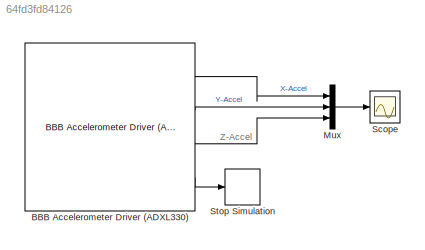
MODEL slx_64fd3fd84126
KIND model
BLOCK [Reference] BBB Accelerometer Driver (ADXL330)  REF=BLACKlink/BBB Accelerometer Driver (ADXL330)
  BBB_AccelSensitivity = Sensitivity: 333 mV/g -> 3.3V Operating Voltage
  BBB_CalibrationReq = on
  BBB_DebugInfo = Debug Level 4 - Include Voltage & Calibration Data
  Ports = [0, 4]
  SourceBlock = BLACKlink/BBB Accelerometer Driver (ADXL330)
  SourceType = BLACKlink Album - BBB_Driver_Accelerometer_ADXL330
BLOCK [Mux] Mux
  DisplayOption = bar
  Inputs = 3
  Ports = [3, 1]
BLOCK [Scope] Scope
  DataFormat = StructureWithTime
  Floating = off
  NumInputPorts = 1
  Ports = [1]
  SampleTime = 0
  ShowLegends = off
  YMax = 2.25
  YMin = -0.75
BLOCK [Stop] Stop Simulation
ANNOTATION (root): Z-Accel
LINE BBB Accelerometer Driver (ADXL330):1 -> Mux:1
LINE BBB Accelerometer Driver (ADXL330):2 -> Mux:2
LINE BBB Accelerometer Driver (ADXL330):3 -> Mux:3
LINE BBB Accelerometer Driver (ADXL330):4 -> Stop Simulation:1
LINE Mux:1 -> Scope:1
